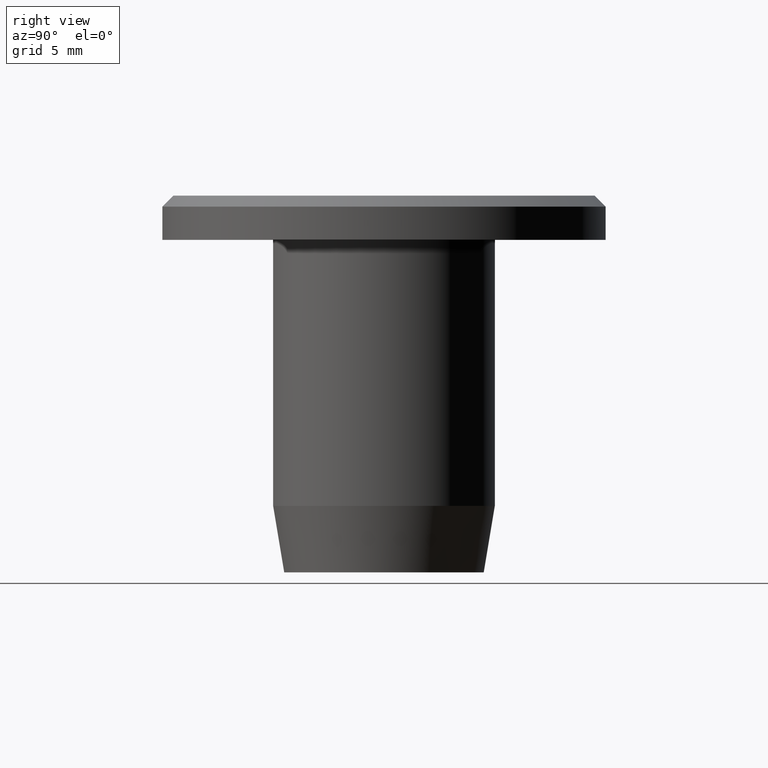
[diagram: clean part render]
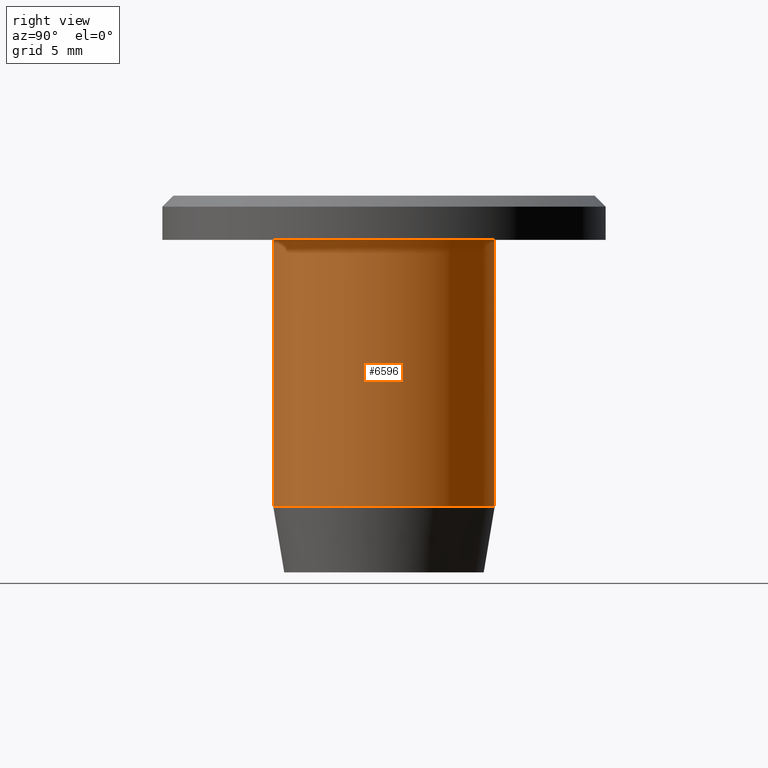
[diagram: same view with one face highlighted and labeled with its STEP entity id]
A machine part, right view. The second image highlights one B-rep face of the part: STEP entity #6596.
In plain terms, the highlighted cylindrical surface (partial cylindrical patch) has radius 5 mm, axis along (-0, 0, -1).
Its self-contained STEP definition (entity closure, byte-faithful):
#920 = EDGE_LOOP ( 'NONE', ( #17016, #2207, #5120, #15607 ) ) ;
#1835 = DIRECTION ( 'NONE',  ( 0.0000000000000000000, -2.500348904555544500E-016, 1.000000000000000000 ) ) ;
#1849 = AXIS2_PLACEMENT_3D ( 'NONE', #8370, #1835, #12438 ) ;
#2207 = ORIENTED_EDGE ( 'NONE', *, *, #7663, .T. ) ;
#2361 = CARTESIAN_POINT ( 'NONE',  ( 6.123233995736770200E-016, -4.999999999999999100, -8.500000000000000000 ) ) ;
#3339 = AXIS2_PLACEMENT_3D ( 'NONE', #4111, #6796, #13433 ) ;
#4111 = CARTESIAN_POINT ( 'NONE',  ( 0.0000000000000000000, -2.469647665687786000E-016, 6.500000000000000900 ) ) ;
#4912 = DIRECTION ( 'NONE',  ( -0.0000000000000000000, 2.500348904555543500E-016, -1.000000000000000000 ) ) ;
#5120 = ORIENTED_EDGE ( 'NONE', *, *, #10819, .T. ) ;
#5220 = CYLINDRICAL_SURFACE ( 'NONE', #7487, 5.000000000000002700 ) ;
#5649 = VERTEX_POINT ( 'NONE', #9445 ) ;
#6412 = LINE ( 'NONE', #2361, #14659 ) ;
#6596 = ADVANCED_FACE ( 'NONE', ( #15918 ), #5220, .T. ) ;
#6618 = CIRCLE ( 'NONE', #1849, 5.000000000000002700 ) ;
#6796 = DIRECTION ( 'NONE',  ( -0.0000000000000000000, 2.500348904555543500E-016, -1.000000000000000000 ) ) ;
#6984 = CARTESIAN_POINT ( 'NONE',  ( 0.0000000000000000000, 5.000000000000005300, 6.500000000000001800 ) ) ;
#7487 = AXIS2_PLACEMENT_3D ( 'NONE', #8740, #8856, #8798 ) ;
#7663 = EDGE_CURVE ( 'NONE', #5649, #9990, #6412, .T. ) ;
#7713 = DIRECTION ( 'NONE',  ( -0.0000000000000000000, 2.500348904555543500E-016, -1.000000000000000000 ) ) ;
#8370 = CARTESIAN_POINT ( 'NONE',  ( 0.0000000000000000000, 2.753453918897874400E-015, -5.500000000000003600 ) ) ;
#8740 = CARTESIAN_POINT ( 'NONE',  ( 0.0000000000000000000, 3.503558590264536900E-015, -8.499999999999998200 ) ) ;
#8798 = DIRECTION ( 'NONE',  ( 0.0000000000000000000, 1.000000000000000000, 3.469446951953612200E-016 ) ) ;
#8856 = DIRECTION ( 'NONE',  ( -0.0000000000000000000, 2.500348904555543500E-016, -1.000000000000000000 ) ) ;
#9010 = VERTEX_POINT ( 'NONE', #9715 ) ;
#9445 = CARTESIAN_POINT ( 'NONE',  ( 6.123233995736775200E-016, -5.000000000000005300, 6.500000000000000000 ) ) ;
#9715 = CARTESIAN_POINT ( 'NONE',  ( 0.0000000000000000000, 5.000000000000005300, -5.500000000000002700 ) ) ;
#9990 = VERTEX_POINT ( 'NONE', #12865 ) ;
#10819 = EDGE_CURVE ( 'NONE', #9990, #9010, #6618, .T. ) ;
#12438 = DIRECTION ( 'NONE',  ( 0.0000000000000000000, 1.000000000000000000, 1.734723475976806100E-016 ) ) ;
#12772 = VECTOR ( 'NONE', #4912, 1000.000000000000000 ) ;
#12865 = CARTESIAN_POINT ( 'NONE',  ( 6.123233995736770200E-016, -5.000000000000000000, -5.500000000000004400 ) ) ;
#13433 = DIRECTION ( 'NONE',  ( 0.0000000000000000000, 1.000000000000000000, 1.734723475976805400E-016 ) ) ;
#13834 = CIRCLE ( 'NONE', #3339, 5.000000000000005300 ) ;
#14659 = VECTOR ( 'NONE', #7713, 1000.000000000000000 ) ;
#14792 = EDGE_CURVE ( 'NONE', #16374, #5649, #13834, .T. ) ;
#15356 = CARTESIAN_POINT ( 'NONE',  ( 0.0000000000000000000, 5.000000000000006200, -8.499999999999996400 ) ) ;
#15607 = ORIENTED_EDGE ( 'NONE', *, *, #16169, .F. ) ;
#15918 = FACE_OUTER_BOUND ( 'NONE', #920, .T. ) ;
#16169 = EDGE_CURVE ( 'NONE', #16374, #9010, #17099, .T. ) ;
#16374 = VERTEX_POINT ( 'NONE', #6984 ) ;
#17016 = ORIENTED_EDGE ( 'NONE', *, *, #14792, .T. ) ;
#17099 = LINE ( 'NONE', #15356, #12772 ) ;